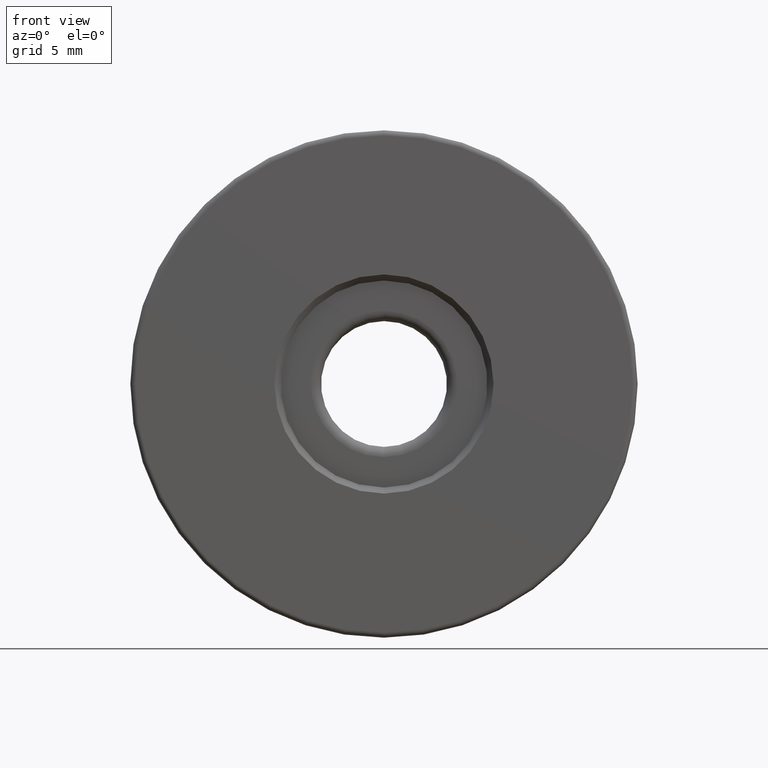
[diagram: clean part render]
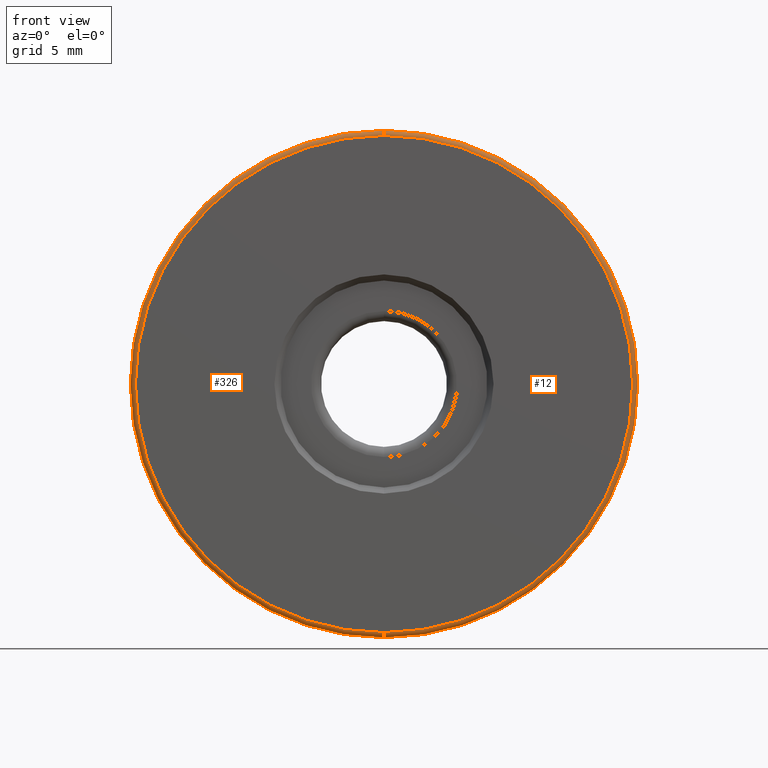
[diagram: same view with one multi-face feature highlighted, each face labeled with its STEP entity id]
A machine part, front view. The highlighted faces form ONE feature: a constant-radius fillet chain: 2 tangent blend faces with common blend radius 0.25 mm. The faces share edges in the B-rep.
Their STEP definitions:
[1] entity #326 (Torus):
#6 = AXIS2_PLACEMENT_3D ( 'NONE', #112, #306, #529 ) ;
#11 = EDGE_LOOP ( 'NONE', ( #349, #116, #14, #500 ) ) ;
#14 = ORIENTED_EDGE ( 'NONE', *, *, #590, .T. ) ;
#32 = CARTESIAN_POINT ( 'NONE',  ( -4.682026255059964726, -4.844975976998274980, 25.00000000000000000 ) ) ;
#36 = TOROIDAL_SURFACE ( 'NONE', #6, 12.25000000000000000, 0.2500000000000000000 ) ;
#58 = EDGE_CURVE ( 'NONE', #610, #158, #406, .T. ) ;
#68 = AXIS2_PLACEMENT_3D ( 'NONE', #90, #564, #477 ) ;
#90 = CARTESIAN_POINT ( 'NONE',  ( -4.682026255059964726, -4.844975976998274980, 37.25000000000000711 ) ) ;
#103 = VERTEX_POINT ( 'NONE', #231 ) ;
#104 = AXIS2_PLACEMENT_3D ( 'NONE', #32, #184, #516 ) ;
#106 = AXIS2_PLACEMENT_3D ( 'NONE', #358, #602, #413 ) ;
#110 = CARTESIAN_POINT ( 'NONE',  ( -4.682026255059964726, -5.094975976998274980, 25.00000000000000000 ) ) ;
#112 = CARTESIAN_POINT ( 'NONE',  ( -4.682026255059964726, -4.844975976998274980, 25.00000000000000000 ) ) ;
#116 = ORIENTED_EDGE ( 'NONE', *, *, #272, .F. ) ;
#142 = CARTESIAN_POINT ( 'NONE',  ( -4.682026255059962949, -4.844975976998274980, 37.50000000000000711 ) ) ;
#153 = CARTESIAN_POINT ( 'NONE',  ( -4.682026255059964726, -5.094975976998274980, 37.25000000000000711 ) ) ;
#158 = VERTEX_POINT ( 'NONE', #142 ) ;
#184 = DIRECTION ( 'NONE',  ( 0.0000000000000000000, 1.000000000000000000, 0.0000000000000000000 ) ) ;
#187 = AXIS2_PLACEMENT_3D ( 'NONE', #110, #578, #532 ) ;
#231 = CARTESIAN_POINT ( 'NONE',  ( -4.682026255059962949, -5.094975976998274980, 12.75000000000000178 ) ) ;
#241 = VERTEX_POINT ( 'NONE', #153 ) ;
#272 = EDGE_CURVE ( 'NONE', #241, #103, #572, .T. ) ;
#306 = DIRECTION ( 'NONE',  ( 0.0000000000000000000, 1.000000000000000000, 0.0000000000000000000 ) ) ;
#319 = CIRCLE ( 'NONE', #68, 0.2500000000000002220 ) ;
#326 = ADVANCED_FACE ( 'NONE', ( #440 ), #36, .T. ) ;
#328 = CIRCLE ( 'NONE', #106, 0.2500000000000002220 ) ;
#349 = ORIENTED_EDGE ( 'NONE', *, *, #427, .F. ) ;
#358 = CARTESIAN_POINT ( 'NONE',  ( -4.682026255059962949, -4.844975976998274980, 12.75000000000000178 ) ) ;
#406 = CIRCLE ( 'NONE', #104, 12.50000000000000355 ) ;
#413 = DIRECTION ( 'NONE',  ( 0.0000000000000000000, 0.0000000000000000000, -1.000000000000000000 ) ) ;
#427 = EDGE_CURVE ( 'NONE', #103, #610, #328, .T. ) ;
#440 = FACE_OUTER_BOUND ( 'NONE', #11, .T. ) ;
#477 = DIRECTION ( 'NONE',  ( 0.0000000000000000000, 0.0000000000000000000, 1.000000000000000000 ) ) ;
#500 = ORIENTED_EDGE ( 'NONE', *, *, #58, .F. ) ;
#516 = DIRECTION ( 'NONE',  ( 0.0000000000000000000, 0.0000000000000000000, 1.000000000000000000 ) ) ;
#529 = DIRECTION ( 'NONE',  ( 0.0000000000000000000, 0.0000000000000000000, 1.000000000000000000 ) ) ;
#532 = DIRECTION ( 'NONE',  ( 0.0000000000000000000, 0.0000000000000000000, 1.000000000000000000 ) ) ;
#564 = DIRECTION ( 'NONE',  ( -1.000000000000000000, 0.0000000000000000000, 0.0000000000000000000 ) ) ;
#572 = CIRCLE ( 'NONE', #187, 12.25000000000000355 ) ;
#578 = DIRECTION ( 'NONE',  ( -0.0000000000000000000, -1.000000000000000000, -0.0000000000000000000 ) ) ;
#590 = EDGE_CURVE ( 'NONE', #241, #158, #319, .T. ) ;
#602 = DIRECTION ( 'NONE',  ( 1.000000000000000000, -0.0000000000000000000, 1.224646799147353207E-16 ) ) ;
#610 = VERTEX_POINT ( 'NONE', #612 ) ;
#612 = CARTESIAN_POINT ( 'NONE',  ( -4.682026255059964726, -4.844975976998274980, 12.50000000000000000 ) ) ;
[2] entity #12 (Torus):
#12 = ADVANCED_FACE ( 'NONE', ( #412 ), #534, .T. ) ;
#34 = EDGE_CURVE ( 'NONE', #103, #241, #543, .T. ) ;
#68 = AXIS2_PLACEMENT_3D ( 'NONE', #90, #564, #477 ) ;
#69 = DIRECTION ( 'NONE',  ( 0.0000000000000000000, 1.000000000000000000, 0.0000000000000000000 ) ) ;
#81 = DIRECTION ( 'NONE',  ( 0.0000000000000000000, 0.0000000000000000000, 1.000000000000000000 ) ) ;
#84 = CARTESIAN_POINT ( 'NONE',  ( -4.682026255059964726, -5.094975976998274980, 25.00000000000000000 ) ) ;
#85 = AXIS2_PLACEMENT_3D ( 'NONE', #84, #597, #176 ) ;
#90 = CARTESIAN_POINT ( 'NONE',  ( -4.682026255059964726, -4.844975976998274980, 37.25000000000000711 ) ) ;
#93 = AXIS2_PLACEMENT_3D ( 'NONE', #409, #503, #81 ) ;
#103 = VERTEX_POINT ( 'NONE', #231 ) ;
#106 = AXIS2_PLACEMENT_3D ( 'NONE', #358, #602, #413 ) ;
#123 = ORIENTED_EDGE ( 'NONE', *, *, #528, .F. ) ;
#142 = CARTESIAN_POINT ( 'NONE',  ( -4.682026255059962949, -4.844975976998274980, 37.50000000000000711 ) ) ;
#153 = CARTESIAN_POINT ( 'NONE',  ( -4.682026255059964726, -5.094975976998274980, 37.25000000000000711 ) ) ;
#158 = VERTEX_POINT ( 'NONE', #142 ) ;
#176 = DIRECTION ( 'NONE',  ( 0.0000000000000000000, 0.0000000000000000000, 1.000000000000000000 ) ) ;
#199 = AXIS2_PLACEMENT_3D ( 'NONE', #411, #69, #596 ) ;
#231 = CARTESIAN_POINT ( 'NONE',  ( -4.682026255059962949, -5.094975976998274980, 12.75000000000000178 ) ) ;
#241 = VERTEX_POINT ( 'NONE', #153 ) ;
#319 = CIRCLE ( 'NONE', #68, 0.2500000000000002220 ) ;
#328 = CIRCLE ( 'NONE', #106, 0.2500000000000002220 ) ;
#356 = ORIENTED_EDGE ( 'NONE', *, *, #590, .F. ) ;
#358 = CARTESIAN_POINT ( 'NONE',  ( -4.682026255059962949, -4.844975976998274980, 12.75000000000000178 ) ) ;
#384 = ORIENTED_EDGE ( 'NONE', *, *, #34, .F. ) ;
#409 = CARTESIAN_POINT ( 'NONE',  ( -4.682026255059964726, -4.844975976998274980, 25.00000000000000000 ) ) ;
#411 = CARTESIAN_POINT ( 'NONE',  ( -4.682026255059964726, -4.844975976998274980, 25.00000000000000000 ) ) ;
#412 = FACE_OUTER_BOUND ( 'NONE', #446, .T. ) ;
#413 = DIRECTION ( 'NONE',  ( 0.0000000000000000000, 0.0000000000000000000, -1.000000000000000000 ) ) ;
#427 = EDGE_CURVE ( 'NONE', #103, #610, #328, .T. ) ;
#446 = EDGE_LOOP ( 'NONE', ( #384, #537, #123, #356 ) ) ;
#477 = DIRECTION ( 'NONE',  ( 0.0000000000000000000, 0.0000000000000000000, 1.000000000000000000 ) ) ;
#503 = DIRECTION ( 'NONE',  ( 0.0000000000000000000, 1.000000000000000000, 0.0000000000000000000 ) ) ;
#528 = EDGE_CURVE ( 'NONE', #158, #610, #584, .T. ) ;
#534 = TOROIDAL_SURFACE ( 'NONE', #93, 12.25000000000000000, 0.2500000000000000000 ) ;
#537 = ORIENTED_EDGE ( 'NONE', *, *, #427, .T. ) ;
#543 = CIRCLE ( 'NONE', #85, 12.25000000000000355 ) ;
#564 = DIRECTION ( 'NONE',  ( -1.000000000000000000, 0.0000000000000000000, 0.0000000000000000000 ) ) ;
#584 = CIRCLE ( 'NONE', #199, 12.50000000000000355 ) ;
#590 = EDGE_CURVE ( 'NONE', #241, #158, #319, .T. ) ;
#596 = DIRECTION ( 'NONE',  ( 0.0000000000000000000, 0.0000000000000000000, 1.000000000000000000 ) ) ;
#597 = DIRECTION ( 'NONE',  ( -0.0000000000000000000, -1.000000000000000000, -0.0000000000000000000 ) ) ;
#602 = DIRECTION ( 'NONE',  ( 1.000000000000000000, -0.0000000000000000000, 1.224646799147353207E-16 ) ) ;
#610 = VERTEX_POINT ( 'NONE', #612 ) ;
#612 = CARTESIAN_POINT ( 'NONE',  ( -4.682026255059964726, -4.844975976998274980, 12.50000000000000000 ) ) ;